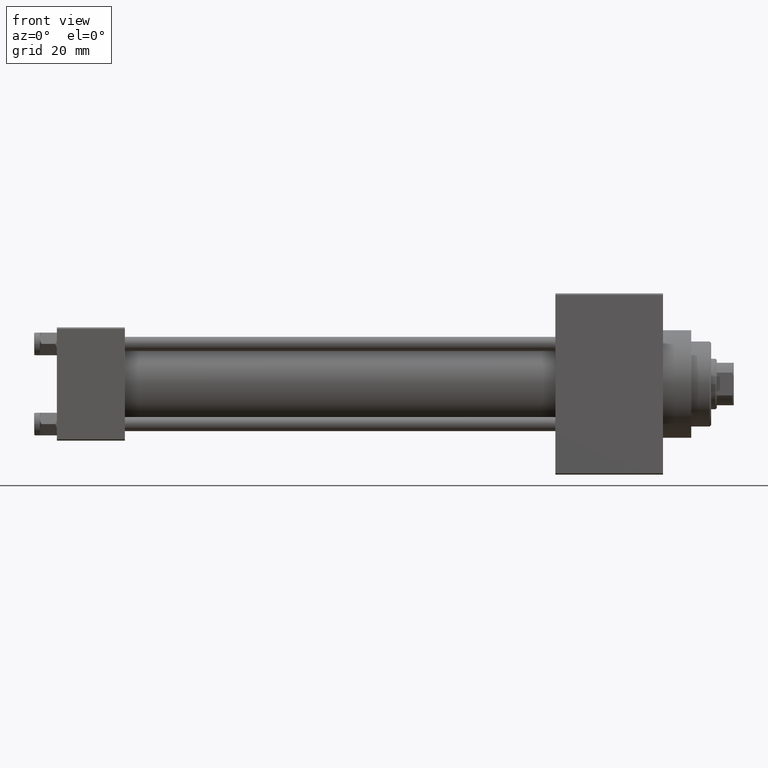
[diagram: clean part render]
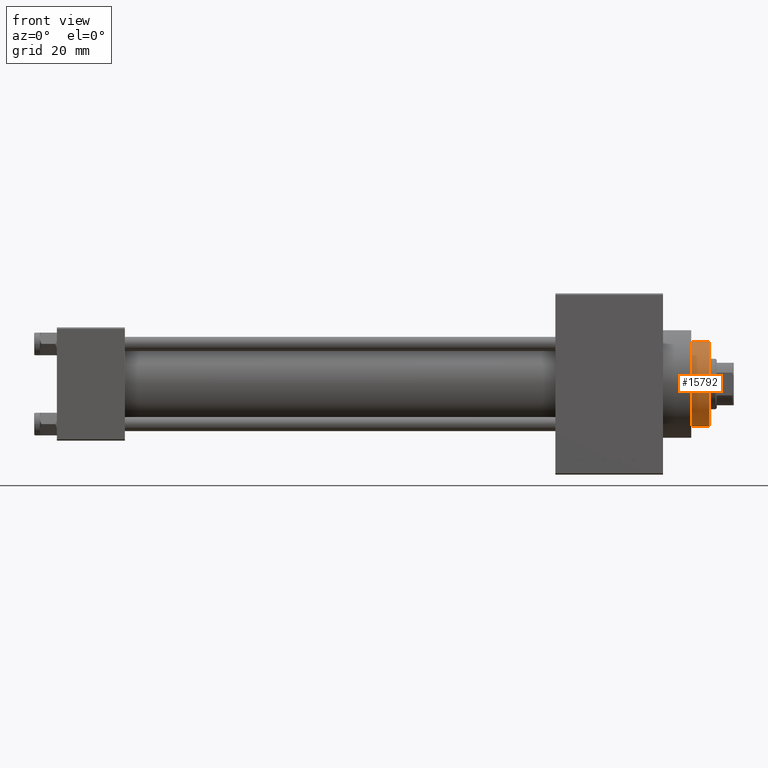
[diagram: same view with one face highlighted and labeled with its STEP entity id]
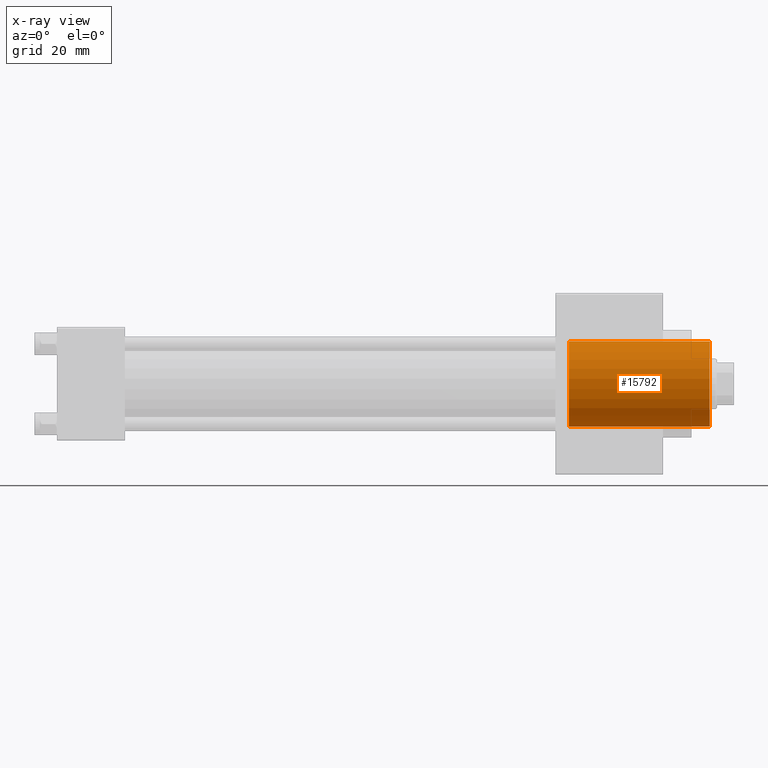
[diagram: x-ray of the same camera — body ghosted, the highlighted face saturated]
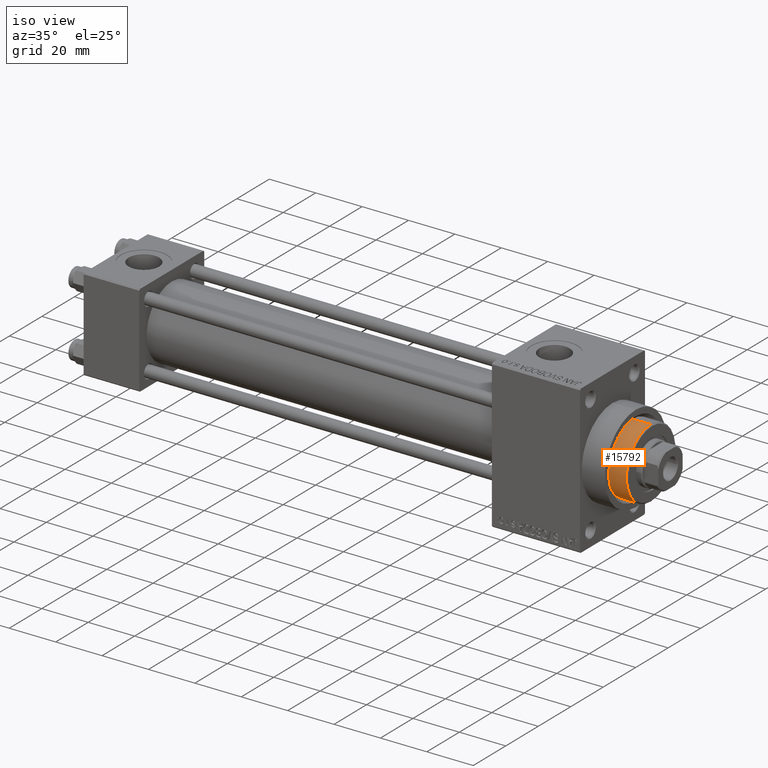
[diagram: same view with one face highlighted and labeled with its STEP entity id]
A machine part, front view. The second image highlights one B-rep face of the part: STEP entity #15792.
The next image is the same camera in x-ray: the body ghosted, the highlighted face saturated — about 0% of this face is hidden behind the body in this view.
A second angle (iso view) of the same face is appended — the face is thin or edge-on in the first view.
In plain terms, the highlighted cylindrical surface (partial cylindrical patch) has radius 15 mm, axis along (-1, 0, 0).
Its self-contained STEP definition (entity closure, byte-faithful):
#551 = AXIS2_PLACEMENT_3D ( 'NONE', #23319, #45724, #13103 ) ;
#2767 = DIRECTION ( 'NONE',  ( -0.000000000000000000, -0.000000000000000000, -1.000000000000000000 ) ) ;
#3454 = DIRECTION ( 'NONE',  ( 1.000000000000000000, 0.000000000000000000, 0.000000000000000000 ) ) ;
#5248 = EDGE_LOOP ( 'NONE', ( #25215, #33524, #16030, #32239 ) ) ;
#6656 = CIRCLE ( 'NONE', #11992, 15.00000000000000000 ) ;
#6903 = CIRCLE ( 'NONE', #24358, 15.00000000000000000 ) ;
#7036 = DIRECTION ( 'NONE',  ( 0.000000000000000000, 0.000000000000000000, -1.000000000000000000 ) ) ;
#7984 = CARTESIAN_POINT ( 'NONE',  ( 0.000000000000000000, 0.000000000000000000, 49.75999999999998380 ) ) ;
#11724 = CARTESIAN_POINT ( 'NONE',  ( 15.00000000000000000, 1.836970198721029589E-15, 49.75999999999998380 ) ) ;
#11992 = AXIS2_PLACEMENT_3D ( 'NONE', #7984, #7036, #3454 ) ;
#13103 = DIRECTION ( 'NONE',  ( -1.000000000000000000, 0.000000000000000000, 0.000000000000000000 ) ) ;
#14306 = LINE ( 'NONE', #22155, #17608 ) ;
#14785 = DIRECTION ( 'NONE',  ( -0.000000000000000000, -0.000000000000000000, -1.000000000000000000 ) ) ;
#15194 = CARTESIAN_POINT ( 'NONE',  ( -15.00000000000000000, 0.000000000000000000, 49.75999999999998380 ) ) ;
#15725 = VECTOR ( 'NONE', #2767, 1000.000000000000000 ) ;
#15792 = ADVANCED_FACE ( 'NONE', ( #26675 ), #38557, .T. ) ;
#16030 = ORIENTED_EDGE ( 'NONE', *, *, #46704, .T. ) ;
#17032 = EDGE_CURVE ( 'NONE', #30907, #34251, #35372, .T. ) ;
#17608 = VECTOR ( 'NONE', #14785, 1000.000000000000000 ) ;
#18382 = CARTESIAN_POINT ( 'NONE',  ( 0.000000000000000000, 0.000000000000000000, 0.000000000000000000 ) ) ;
#19471 = EDGE_CURVE ( 'NONE', #30907, #35724, #6656, .T. ) ;
#22155 = CARTESIAN_POINT ( 'NONE',  ( 15.00000000000000000, 1.836970198721029589E-15, 43.25999999999999801 ) ) ;
#22191 = DIRECTION ( 'NONE',  ( 0.000000000000000000, 0.000000000000000000, 1.000000000000000000 ) ) ;
#22652 = DIRECTION ( 'NONE',  ( 1.000000000000000000, 0.000000000000000000, 0.000000000000000000 ) ) ;
#23319 = CARTESIAN_POINT ( 'NONE',  ( 0.000000000000000000, 0.000000000000000000, 43.25999999999999801 ) ) ;
#24282 = VERTEX_POINT ( 'NONE', #24624 ) ;
#24358 = AXIS2_PLACEMENT_3D ( 'NONE', #18382, #22191, #22652 ) ;
#24624 = CARTESIAN_POINT ( 'NONE',  ( 15.00000000000000000, 1.836970198721029589E-15, 0.000000000000000000 ) ) ;
#25215 = ORIENTED_EDGE ( 'NONE', *, *, #19471, .T. ) ;
#25232 = CARTESIAN_POINT ( 'NONE',  ( -15.00000000000000000, 0.000000000000000000, 0.000000000000000000 ) ) ;
#26675 = FACE_OUTER_BOUND ( 'NONE', #5248, .T. ) ;
#30907 = VERTEX_POINT ( 'NONE', #15194 ) ;
#32239 = ORIENTED_EDGE ( 'NONE', *, *, #17032, .F. ) ;
#33524 = ORIENTED_EDGE ( 'NONE', *, *, #34233, .T. ) ;
#34233 = EDGE_CURVE ( 'NONE', #35724, #24282, #14306, .T. ) ;
#34251 = VERTEX_POINT ( 'NONE', #25232 ) ;
#35143 = CARTESIAN_POINT ( 'NONE',  ( -15.00000000000000000, 0.000000000000000000, 43.25999999999999801 ) ) ;
#35372 = LINE ( 'NONE', #35143, #15725 ) ;
#35724 = VERTEX_POINT ( 'NONE', #11724 ) ;
#38557 = CYLINDRICAL_SURFACE ( 'NONE', #551, 15.00000000000000000 ) ;
#45724 = DIRECTION ( 'NONE',  ( -0.000000000000000000, -0.000000000000000000, -1.000000000000000000 ) ) ;
#46704 = EDGE_CURVE ( 'NONE', #24282, #34251, #6903, .T. ) ;